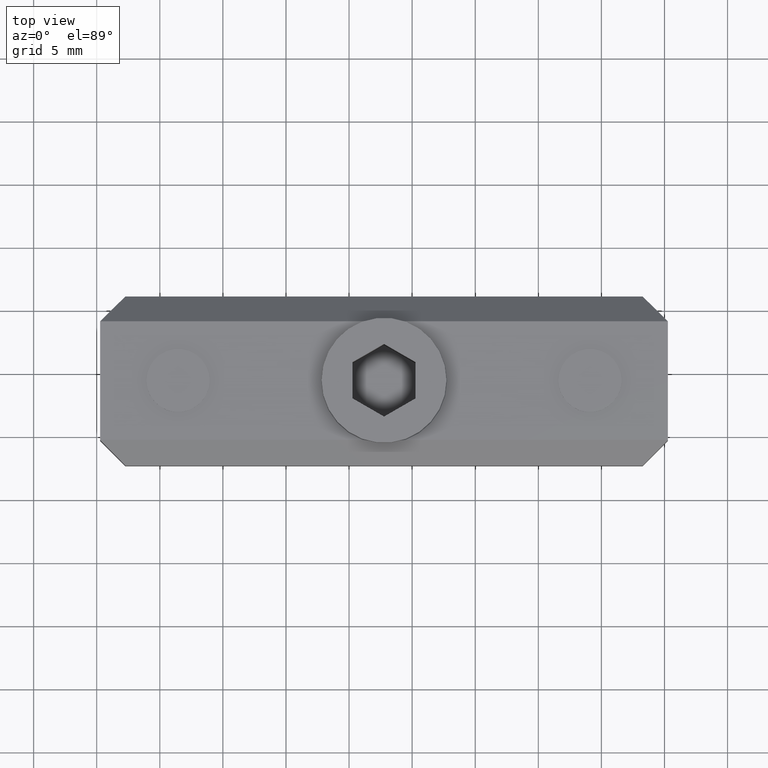
[diagram: clean part render]
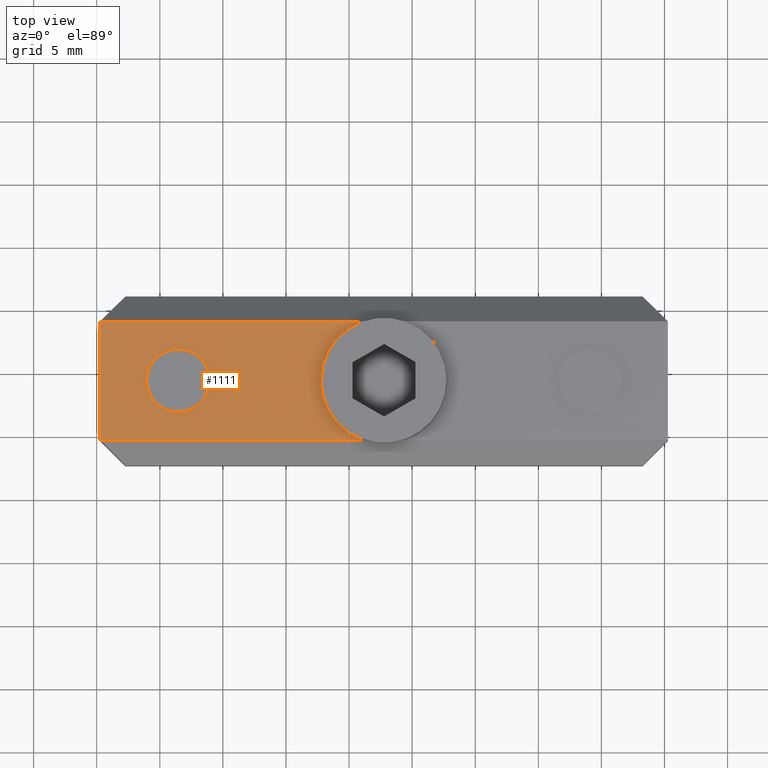
[diagram: same view with one face highlighted and labeled with its STEP entity id]
A machine part, top view. The second image highlights one B-rep face of the part: STEP entity #1111.
In plain terms, the highlighted planar face has unit normal (0, 0, -1).
Its self-contained STEP definition (entity closure, byte-faithful):
#27=FACE_BOUND('',#196,.T.);
#68=PLANE('',#1230);
#125=FACE_OUTER_BOUND('',#195,.T.);
#195=EDGE_LOOP('',(#927,#928,#929,#930));
#196=EDGE_LOOP('',(#931));
#264=LINE('',#1766,#361);
#272=LINE('',#1782,#369);
#276=LINE('',#1790,#373);
#361=VECTOR('',#1453,10.);
#369=VECTOR('',#1467,10.);
#373=VECTOR('',#1475,10.);
#424=CIRCLE('',#1181,2.5);
#438=CIRCLE('',#1211,5.);
#483=VERTEX_POINT('',#1655);
#509=VERTEX_POINT('',#1734);
#511=VERTEX_POINT('',#1739);
#520=VERTEX_POINT('',#1764);
#525=VERTEX_POINT('',#1780);
#596=EDGE_CURVE('',#483,#483,#424,.T.);
#633=EDGE_CURVE('',#511,#509,#438,.T.);
#646=EDGE_CURVE('',#520,#509,#264,.T.);
#654=EDGE_CURVE('',#520,#525,#272,.T.);
#658=EDGE_CURVE('',#511,#525,#276,.T.);
#927=ORIENTED_EDGE('',*,*,#633,.T.);
#928=ORIENTED_EDGE('',*,*,#646,.F.);
#929=ORIENTED_EDGE('',*,*,#654,.T.);
#930=ORIENTED_EDGE('',*,*,#658,.F.);
#931=ORIENTED_EDGE('',*,*,#596,.T.);
#1111=ADVANCED_FACE('',(#125,#27),#68,.F.);
#1181=AXIS2_PLACEMENT_3D('',#1657,#1349,#1350);
#1211=AXIS2_PLACEMENT_3D('',#1740,#1431,#1432);
#1230=AXIS2_PLACEMENT_3D('',#1813,#1499,#1500);
#1349=DIRECTION('center_axis',(0.,0.,-1.));
#1350=DIRECTION('ref_axis',(-1.,0.,0.));
#1431=DIRECTION('center_axis',(0.,0.,-1.));
#1432=DIRECTION('ref_axis',(-1.,0.,0.));
#1453=DIRECTION('',(1.,0.,0.));
#1467=DIRECTION('',(0.,-1.,0.));
#1475=DIRECTION('',(-1.,0.,0.));
#1499=DIRECTION('center_axis',(0.,0.,-1.));
#1500=DIRECTION('ref_axis',(1.,0.,0.));
#1655=CARTESIAN_POINT('',(-6.05551324335251,18.9327112716979,19.7547064391074));
#1657=CARTESIAN_POINT('Origin',(-8.55551324335251,18.9327112716979,19.7547064391074));
#1734=CARTESIAN_POINT('',(6.0636145457243,23.6327112716979,19.7547064391074));
#1739=CARTESIAN_POINT('',(6.0636145457243,14.2327112716979,19.7547064391074));
#1740=CARTESIAN_POINT('Origin',(7.7694867566475,18.9327112716979,19.7547064391074));
#1764=CARTESIAN_POINT('',(-14.7305132433525,23.6327112716979,19.7547064391074));
#1766=CARTESIAN_POINT('',(-3.4805132433525,23.6327112716979,19.7547064391074));
#1780=CARTESIAN_POINT('',(-14.7305132433525,14.2327112716979,19.7547064391074));
#1782=CARTESIAN_POINT('',(-14.7305132433525,25.6327112716979,19.7547064391074));
#1790=CARTESIAN_POINT('',(19.0194867566475,14.2327112716979,19.7547064391074));
#1813=CARTESIAN_POINT('Origin',(7.7694867566475,18.9327112716979,19.7547064391074));